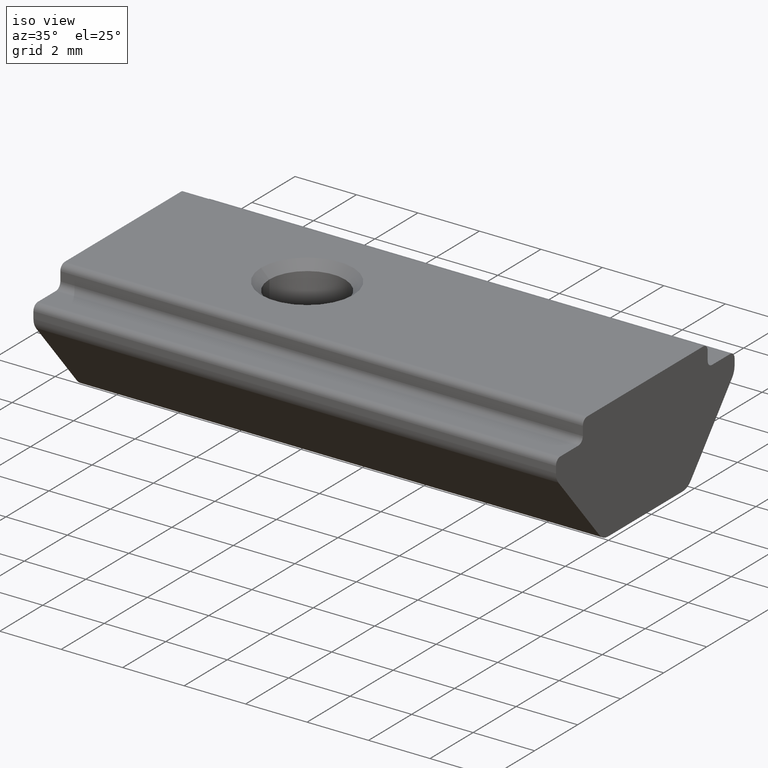
[diagram: clean part render]
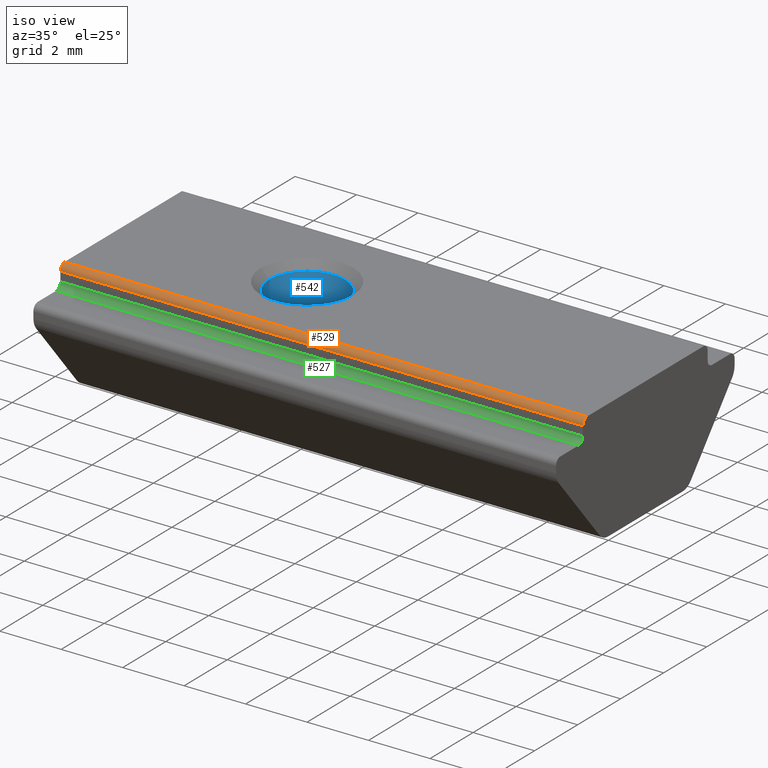
[diagram: same view with three faces highlighted in distinct colors, each labeled with its STEP entity id]
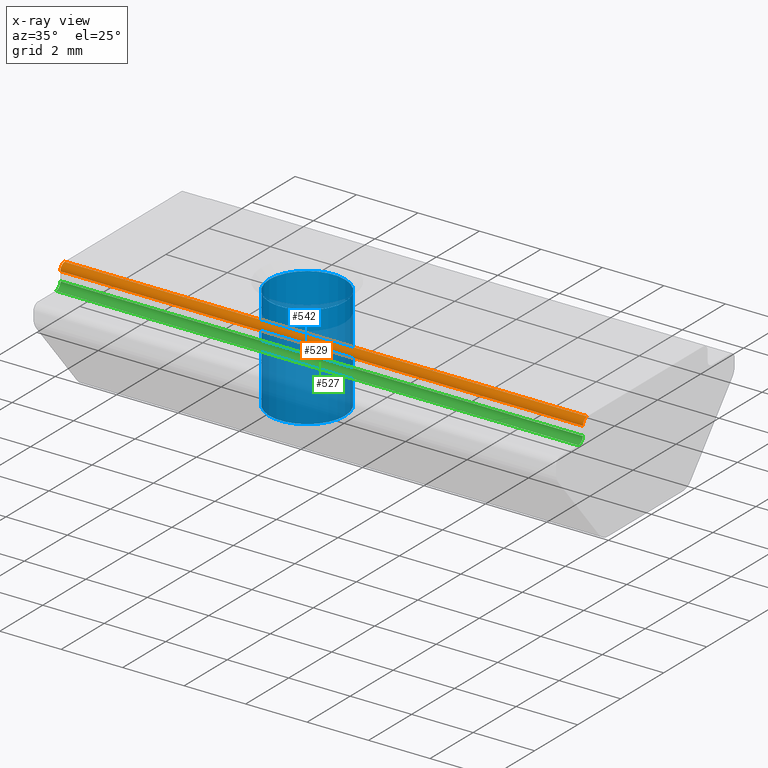
[diagram: x-ray of the same camera — body ghosted, the three highlighted faces saturated]
A machine part, iso view with three faces highlighted in distinct colors.
The next image is the same camera in x-ray (body ghosted, the three faces saturated) — at least one of them is partly hidden behind the body in this view.
Their STEP definitions:

[orange] entity #529 — the highlighted cylindrical surface (edge-blend (fillet) strip) has radius 0.2 mm, axis along (1, 0, 0).
#25=CYLINDRICAL_SURFACE('',#585,0.2);
#45=FACE_OUTER_BOUND('',#74,.T.);
#74=EDGE_LOOP('',(#397,#398,#399,#400));
#113=LINE('',#873,#159);
#115=LINE('',#879,#161);
#159=VECTOR('',#692,1000.);
#161=VECTOR('',#698,1000.);
#198=CIRCLE('',#586,0.2);
#199=CIRCLE('',#587,0.2);
#241=VERTEX_POINT('',#870);
#242=VERTEX_POINT('',#872);
#243=VERTEX_POINT('',#876);
#244=VERTEX_POINT('',#878);
#305=EDGE_CURVE('',#242,#241,#113,.T.);
#307=EDGE_CURVE('',#241,#243,#198,.T.);
#308=EDGE_CURVE('',#244,#243,#115,.T.);
#309=EDGE_CURVE('',#242,#244,#199,.T.);
#397=ORIENTED_EDGE('',*,*,#307,.T.);
#398=ORIENTED_EDGE('',*,*,#308,.F.);
#399=ORIENTED_EDGE('',*,*,#309,.F.);
#400=ORIENTED_EDGE('',*,*,#305,.T.);
#529=ADVANCED_FACE('',(#45),#25,.T.);
#585=AXIS2_PLACEMENT_3D('',#875,#694,#695);
#586=AXIS2_PLACEMENT_3D('',#877,#696,#697);
#587=AXIS2_PLACEMENT_3D('',#880,#699,#700);
#692=DIRECTION('',(1.,0.,2.22044604925031E-16));
#694=DIRECTION('center_axis',(1.,0.,2.22044604925031E-16));
#695=DIRECTION('ref_axis',(2.22044604925031E-16,0.,-1.));
#696=DIRECTION('center_axis',(-1.,0.,-2.22044604925031E-16));
#697=DIRECTION('ref_axis',(-2.22044604925031E-16,0.,1.));
#698=DIRECTION('',(1.,0.,2.22044604925031E-16));
#699=DIRECTION('center_axis',(-1.,0.,-2.22044604925031E-16));
#700=DIRECTION('ref_axis',(-2.22044604925031E-16,0.,1.));
#870=CARTESIAN_POINT('',(-0.799999999999997,-2.9,-4.00000000000001));
#872=CARTESIAN_POINT('',(-17.8,-2.9,-4.00000000000001));
#873=CARTESIAN_POINT('',(-17.8,-2.9,-4.00000000000001));
#875=CARTESIAN_POINT('Origin',(-17.8,-2.7,-4.00000000000001));
#876=CARTESIAN_POINT('',(-0.799999999999997,-2.7,-3.80000000000001));
#877=CARTESIAN_POINT('Origin',(-0.799999999999997,-2.7,-4.00000000000001));
#878=CARTESIAN_POINT('',(-17.8,-2.7,-3.80000000000001));
#879=CARTESIAN_POINT('',(-17.8,-2.7,-3.80000000000001));
#880=CARTESIAN_POINT('Origin',(-17.8,-2.7,-4.00000000000001));

[blue] entity #542 — the highlighted cylindrical surface (bore or boss wall) has radius 1.2295 mm, axis along (-0, 0, 1).
#30=CYLINDRICAL_SURFACE('',#611,1.2295);
#58=FACE_OUTER_BOUND('',#88,.T.);
#88=EDGE_LOOP('',(#483,#484,#485,#486,#487));
#135=LINE('',#944,#181);
#181=VECTOR('',#768,1.2295);
#209=CIRCLE('',#609,1.2295);
#210=CIRCLE('',#610,1.2295);
#211=CIRCLE('',#612,1.2295);
#262=VERTEX_POINT('',#937);
#263=VERTEX_POINT('',#938);
#264=VERTEX_POINT('',#943);
#337=EDGE_CURVE('',#262,#263,#209,.T.);
#338=EDGE_CURVE('',#263,#262,#210,.T.);
#340=EDGE_CURVE('',#263,#264,#135,.T.);
#341=EDGE_CURVE('',#264,#264,#211,.T.);
#483=ORIENTED_EDGE('',*,*,#337,.F.);
#484=ORIENTED_EDGE('',*,*,#338,.F.);
#485=ORIENTED_EDGE('',*,*,#340,.T.);
#486=ORIENTED_EDGE('',*,*,#341,.T.);
#487=ORIENTED_EDGE('',*,*,#340,.F.);
#542=ADVANCED_FACE('',(#58),#30,.F.);
#609=AXIS2_PLACEMENT_3D('',#939,#761,#762);
#610=AXIS2_PLACEMENT_3D('',#940,#763,#764);
#611=AXIS2_PLACEMENT_3D('',#942,#766,#767);
#612=AXIS2_PLACEMENT_3D('',#945,#769,#770);
#761=DIRECTION('center_axis',(-2.22044604925031E-16,0.,1.));
#762=DIRECTION('ref_axis',(1.,0.,2.22044604925031E-16));
#763=DIRECTION('center_axis',(-2.22044604925031E-16,0.,1.));
#764=DIRECTION('ref_axis',(1.,0.,2.22044604925031E-16));
#766=DIRECTION('center_axis',(-2.22044604925031E-16,0.,1.));
#767=DIRECTION('ref_axis',(1.,0.,2.22044604925031E-16));
#768=DIRECTION('',(-2.22044604925031E-16,0.,1.));
#769=DIRECTION('center_axis',(-2.22044604925031E-16,0.,1.));
#770=DIRECTION('ref_axis',(1.,0.,2.22044604925031E-16));
#937=CARTESIAN_POINT('',(-10.5705,0.,-7.42950000000001));
#938=CARTESIAN_POINT('',(-13.0295,-1.50570323955167E-16,-7.42950000000001));
#939=CARTESIAN_POINT('Origin',(-11.8,0.,-7.42950000000001));
#940=CARTESIAN_POINT('Origin',(-11.8,0.,-7.42950000000001));
#942=CARTESIAN_POINT('Origin',(-11.8,0.,-3.80000000000001));
#943=CARTESIAN_POINT('',(-13.0295,-1.50570323955167E-16,-4.07050000000001));
#944=CARTESIAN_POINT('',(-13.0295,-1.50570323955167E-16,-3.80000000000001));
#945=CARTESIAN_POINT('Origin',(-11.8,0.,-4.07050000000001));

[green] entity #527 — the highlighted cylindrical surface (edge-blend (fillet) strip) has radius 0.2 mm, axis along (1, 0, 0).
#24=CYLINDRICAL_SURFACE('',#581,0.200000000000001);
#43=FACE_OUTER_BOUND('',#72,.T.);
#72=EDGE_LOOP('',(#389,#390,#391,#392));
#109=LINE('',#861,#155);
#111=LINE('',#867,#157);
#155=VECTOR('',#680,1000.);
#157=VECTOR('',#686,1000.);
#196=CIRCLE('',#582,0.200000000000001);
#197=CIRCLE('',#583,0.200000000000001);
#237=VERTEX_POINT('',#858);
#238=VERTEX_POINT('',#860);
#239=VERTEX_POINT('',#864);
#240=VERTEX_POINT('',#866);
#299=EDGE_CURVE('',#238,#237,#109,.T.);
#301=EDGE_CURVE('',#239,#237,#196,.T.);
#302=EDGE_CURVE('',#240,#239,#111,.T.);
#303=EDGE_CURVE('',#240,#238,#197,.T.);
#389=ORIENTED_EDGE('',*,*,#301,.F.);
#390=ORIENTED_EDGE('',*,*,#302,.F.);
#391=ORIENTED_EDGE('',*,*,#303,.T.);
#392=ORIENTED_EDGE('',*,*,#299,.T.);
#527=ADVANCED_FACE('',(#43),#24,.F.);
#581=AXIS2_PLACEMENT_3D('',#863,#682,#683);
#582=AXIS2_PLACEMENT_3D('',#865,#684,#685);
#583=AXIS2_PLACEMENT_3D('',#868,#687,#688);
#680=DIRECTION('',(1.,0.,2.22044604925031E-16));
#682=DIRECTION('center_axis',(1.,0.,2.22044604925031E-16));
#683=DIRECTION('ref_axis',(2.22044604925031E-16,0.,-1.));
#684=DIRECTION('center_axis',(-1.,0.,-2.22044604925031E-16));
#685=DIRECTION('ref_axis',(-2.22044604925031E-16,0.,1.));
#686=DIRECTION('',(1.,0.,2.22044604925031E-16));
#687=DIRECTION('center_axis',(-1.,0.,-2.22044604925031E-16));
#688=DIRECTION('ref_axis',(-2.22044604925031E-16,0.,1.));
#858=CARTESIAN_POINT('',(-0.799999999999997,-3.1,-4.50000000000001));
#860=CARTESIAN_POINT('',(-17.8,-3.1,-4.50000000000001));
#861=CARTESIAN_POINT('',(-17.8,-3.1,-4.50000000000001));
#863=CARTESIAN_POINT('Origin',(-17.8,-3.1,-4.30000000000001));
#864=CARTESIAN_POINT('',(-0.799999999999997,-2.9,-4.30000000000001));
#865=CARTESIAN_POINT('Origin',(-0.799999999999997,-3.1,-4.30000000000001));
#866=CARTESIAN_POINT('',(-17.8,-2.9,-4.30000000000001));
#867=CARTESIAN_POINT('',(-17.8,-2.9,-4.30000000000001));
#868=CARTESIAN_POINT('Origin',(-17.8,-3.1,-4.30000000000001));